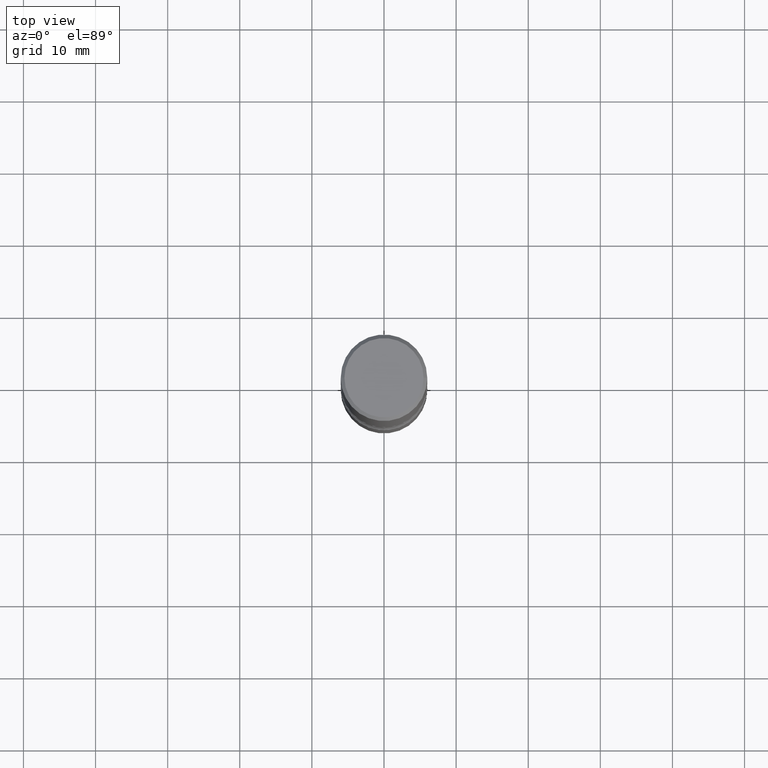
[diagram: clean part render]
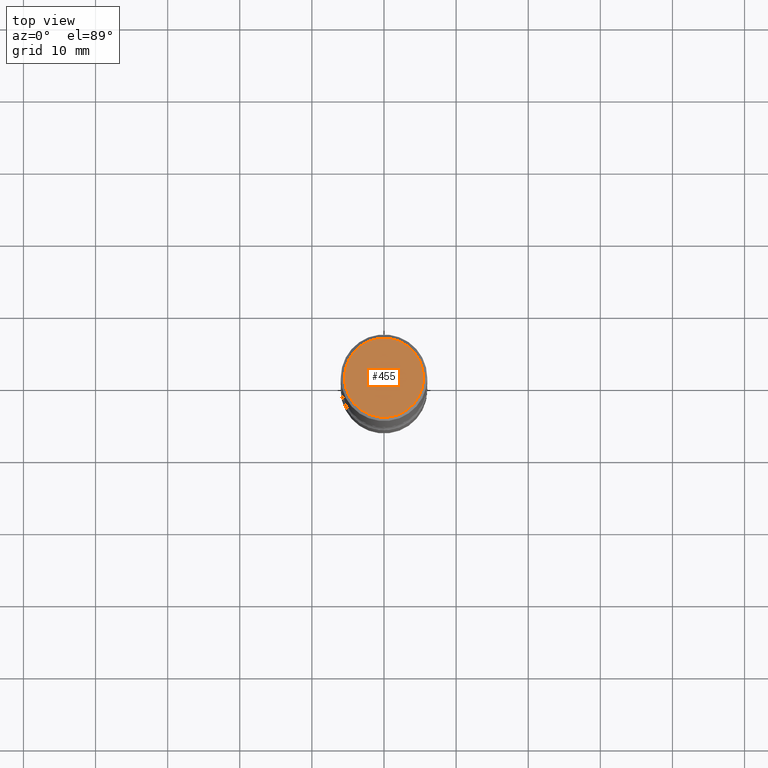
[diagram: same view with one face highlighted and labeled with its STEP entity id]
A machine part, top view. The second image highlights one B-rep face of the part: STEP entity #455.
In plain terms, the highlighted planar face has unit normal (0, -0, -1).
Its self-contained STEP definition (entity closure, byte-faithful):
#4 = CARTESIAN_POINT ( 'NONE',  ( 0.2161999999999998368, -1.586759460484351002E-15, 4.268512490111238857E-18 ) ) ;
#38 = EDGE_CURVE ( 'NONE', #458, #373, #539, .T. ) ;
#39 = AXIS2_PLACEMENT_3D ( 'NONE', #270, #43, #177 ) ;
#43 = DIRECTION ( 'NONE',  ( -2.445468806185136597E-29, 3.491481338843145583E-15, 1.000000000000000000 ) ) ;
#66 = FACE_OUTER_BOUND ( 'NONE', #245, .T. ) ;
#95 = EDGE_CURVE ( 'NONE', #373, #458, #167, .T. ) ;
#118 = AXIS2_PLACEMENT_3D ( 'NONE', #289, #334, #150 ) ;
#146 = PLANE ( 'NONE',  #118 ) ;
#150 = DIRECTION ( 'NONE',  ( -1.000000000000000000, 6.982962677686265922E-15, -4.876176775795935793E-29 ) ) ;
#164 = DIRECTION ( 'NONE',  ( -2.445468806185136597E-29, 3.491481338843145583E-15, 1.000000000000000000 ) ) ;
#167 = CIRCLE ( 'NONE', #530, 0.2161999999999998368 ) ;
#177 = DIRECTION ( 'NONE',  ( 1.000000000000000000, -6.982962677686266711E-15, 4.876217060660159599E-29 ) ) ;
#240 = ORIENTED_EDGE ( 'NONE', *, *, #38, .T. ) ;
#245 = EDGE_LOOP ( 'NONE', ( #240, #365 ) ) ;
#260 = DIRECTION ( 'NONE',  ( 1.000000000000000000, -6.982962677686266711E-15, 4.876217060660159599E-29 ) ) ;
#270 = CARTESIAN_POINT ( 'NONE',  ( -1.043851414335219820E-46, 1.490343170380447200E-32, 4.268512490100411279E-18 ) ) ;
#289 = CARTESIAN_POINT ( 'NONE',  ( 1.509716530915769534E-15, 0.2161999999999998368, -7.527240092128373149E-16 ) ) ;
#334 = DIRECTION ( 'NONE',  ( 2.438088387897960049E-29, -3.491481338843145188E-15, -1.000000000000000000 ) ) ;
#365 = ORIENTED_EDGE ( 'NONE', *, *, #95, .T. ) ;
#373 = VERTEX_POINT ( 'NONE', #4 ) ;
#455 = ADVANCED_FACE ( 'NONE', ( #66 ), #146, .F. ) ;
#458 = VERTEX_POINT ( 'NONE', #490 ) ;
#465 = CARTESIAN_POINT ( 'NONE',  ( -1.043851414335219820E-46, 1.490343170380447200E-32, 4.268512490100411279E-18 ) ) ;
#490 = CARTESIAN_POINT ( 'NONE',  ( -0.2161999999999998368, 1.544631344304201183E-15, 4.268512490089730842E-18 ) ) ;
#530 = AXIS2_PLACEMENT_3D ( 'NONE', #465, #164, #260 ) ;
#539 = CIRCLE ( 'NONE', #39, 0.2161999999999998368 ) ;